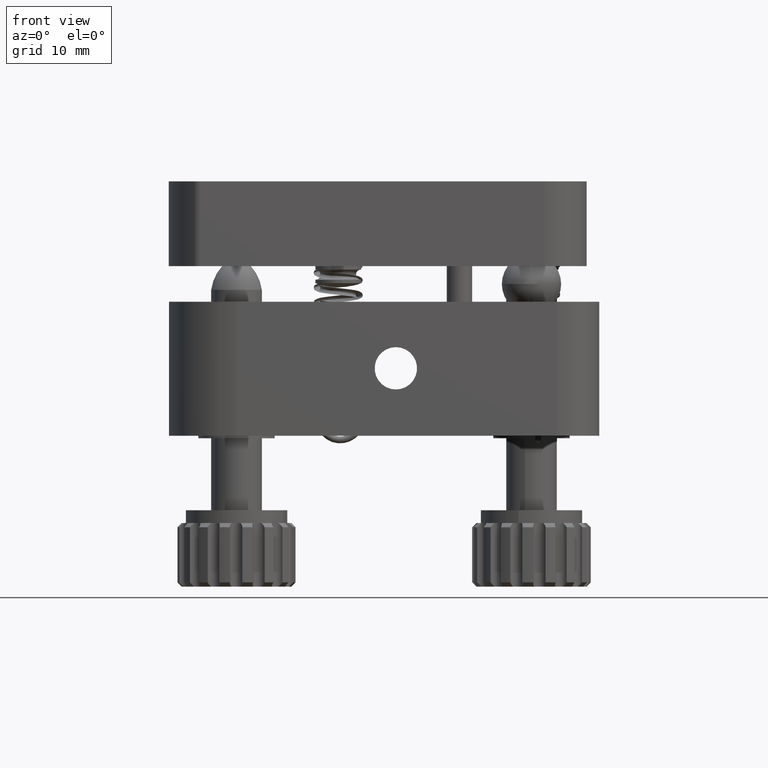
[diagram: clean part render]
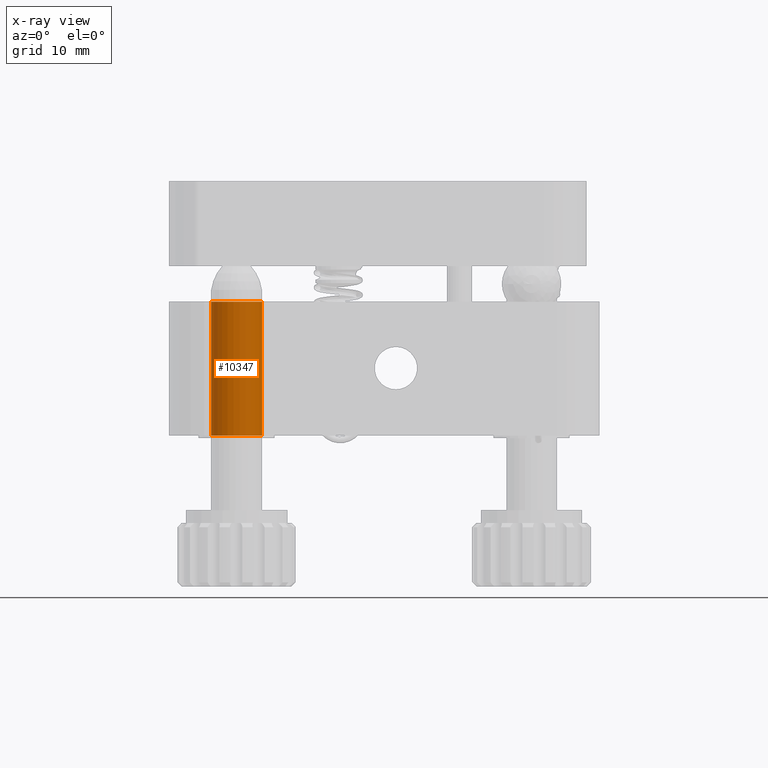
[diagram: x-ray — body ghosted, one internal face saturated and labeled with its STEP entity id]
A machine part, front view, then the same camera in x-ray: the body is ghosted and one INTERNAL B-rep face — a face not visible from any outside direction — is saturated and labeled: STEP entity #10347.
In plain terms, the highlighted cylindrical surface (edge-blend (fillet) strip) has radius 3 mm, axis along (-0, -0, -1).
Its self-contained STEP definition (entity closure, byte-faithful):
#1866 = DIRECTION ( 'NONE',  ( -1.000000000000000000, 0.0000000000000000000, 0.0000000000000000000 ) ) ;
#2918 = CARTESIAN_POINT ( 'NONE',  ( -3.106063416879445400, 23.91778669584324000, 37.86366457255799400 ) ) ;
#3305 = AXIS2_PLACEMENT_3D ( 'NONE', #31084, #15488, #10313 ) ;
#5001 = FACE_OUTER_BOUND ( 'NONE', #16336, .T. ) ;
#6022 = EDGE_CURVE ( 'NONE', #32364, #19229, #16856, .T. ) ;
#8051 = ORIENTED_EDGE ( 'NONE', *, *, #8249, .T. ) ;
#8249 = EDGE_CURVE ( 'NONE', #19229, #22005, #18900, .T. ) ;
#8272 = CARTESIAN_POINT ( 'NONE',  ( -0.1060634168794441500, 23.91778669584324000, 37.86366457255799400 ) ) ;
#8672 = CYLINDRICAL_SURFACE ( 'NONE', #3305, 3.000000000000001300 ) ;
#10313 = DIRECTION ( 'NONE',  ( -1.000000000000000000, 0.0000000000000000000, 0.0000000000000000000 ) ) ;
#10347 = ADVANCED_FACE ( 'NONE', ( #5001 ), #8672, .F. ) ;
#10372 = ORIENTED_EDGE ( 'NONE', *, *, #14076, .F. ) ;
#10405 = LINE ( 'NONE', #12227, #29597 ) ;
#10952 = DIRECTION ( 'NONE',  ( -1.000000000000000000, 0.0000000000000000000, 0.0000000000000000000 ) ) ;
#11597 = AXIS2_PLACEMENT_3D ( 'NONE', #8272, #26608, #10952 ) ;
#12227 = CARTESIAN_POINT ( 'NONE',  ( -3.106063416879445400, 23.91778669584324000, 37.86366457255799400 ) ) ;
#12343 = DIRECTION ( 'NONE',  ( -0.0000000000000000000, -0.0000000000000000000, -1.000000000000000000 ) ) ;
#14076 = EDGE_CURVE ( 'NONE', #29081, #22005, #10405, .T. ) ;
#15488 = DIRECTION ( 'NONE',  ( -0.0000000000000000000, -0.0000000000000000000, -1.000000000000000000 ) ) ;
#16336 = EDGE_LOOP ( 'NONE', ( #19680, #17206, #8051, #10372 ) ) ;
#16565 = CARTESIAN_POINT ( 'NONE',  ( -3.106063416879445400, 23.91778669584324000, 22.06366457255799000 ) ) ;
#16856 = LINE ( 'NONE', #30598, #23837 ) ;
#17139 = AXIS2_PLACEMENT_3D ( 'NONE', #33273, #17603, #1866 ) ;
#17206 = ORIENTED_EDGE ( 'NONE', *, *, #6022, .T. ) ;
#17603 = DIRECTION ( 'NONE',  ( 0.0000000000000000000, 0.0000000000000000000, -1.000000000000000000 ) ) ;
#18900 = CIRCLE ( 'NONE', #17139, 3.000000000000001300 ) ;
#19229 = VERTEX_POINT ( 'NONE', #21958 ) ;
#19680 = ORIENTED_EDGE ( 'NONE', *, *, #24016, .F. ) ;
#21958 = CARTESIAN_POINT ( 'NONE',  ( 2.893936583120557200, 23.91778669584324000, 22.06366457255799000 ) ) ;
#22005 = VERTEX_POINT ( 'NONE', #16565 ) ;
#22925 = CIRCLE ( 'NONE', #11597, 3.000000000000001300 ) ;
#23837 = VECTOR ( 'NONE', #12343, 1000.000000000000000 ) ;
#24016 = EDGE_CURVE ( 'NONE', #32364, #29081, #22925, .T. ) ;
#26608 = DIRECTION ( 'NONE',  ( 0.0000000000000000000, 0.0000000000000000000, -1.000000000000000000 ) ) ;
#26637 = CARTESIAN_POINT ( 'NONE',  ( 2.893936583120557200, 23.91778669584324000, 37.86366457255799400 ) ) ;
#27768 = DIRECTION ( 'NONE',  ( -0.0000000000000000000, -0.0000000000000000000, -1.000000000000000000 ) ) ;
#29081 = VERTEX_POINT ( 'NONE', #2918 ) ;
#29597 = VECTOR ( 'NONE', #27768, 1000.000000000000000 ) ;
#30598 = CARTESIAN_POINT ( 'NONE',  ( 2.893936583120557200, 23.91778669584324000, 37.86366457255799400 ) ) ;
#31084 = CARTESIAN_POINT ( 'NONE',  ( -0.1060634168794441500, 23.91778669584324000, 37.86366457255799400 ) ) ;
#32364 = VERTEX_POINT ( 'NONE', #26637 ) ;
#33273 = CARTESIAN_POINT ( 'NONE',  ( -0.1060634168794441500, 23.91778669584324000, 22.06366457255799000 ) ) ;